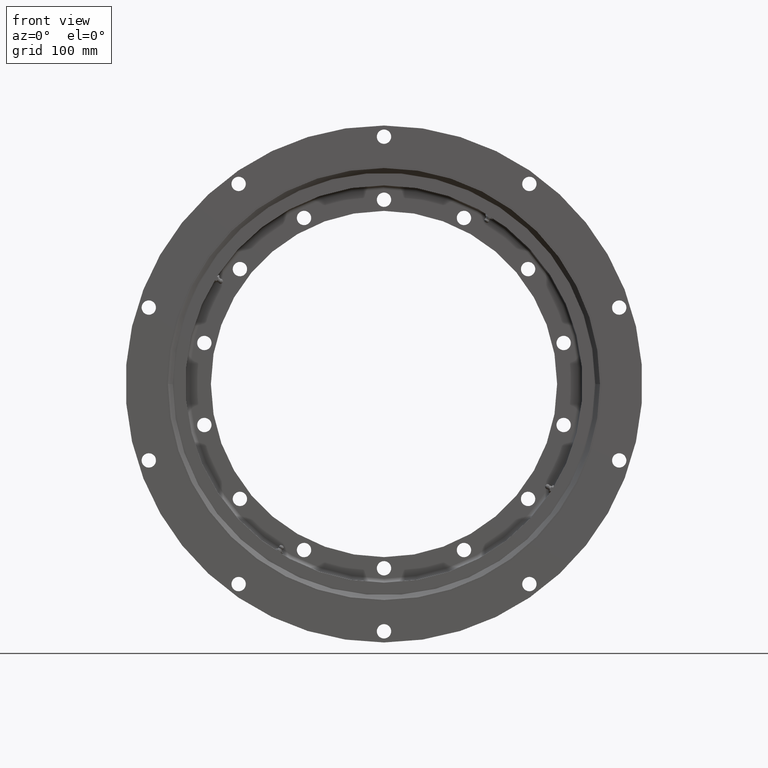
[diagram: clean part render]
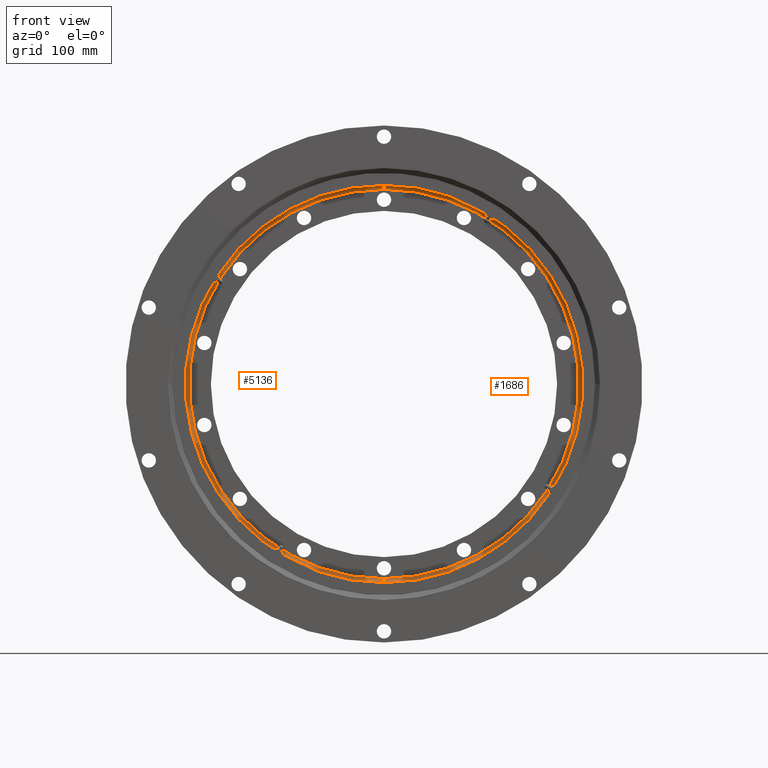
[diagram: same view with one multi-face feature highlighted, each face labeled with its STEP entity id]
A machine part, front view. The highlighted faces form ONE feature: a constant-radius fillet chain: 2 tangent blend faces with common blend radius 5 mm. The faces share edges in the B-rep.
Their STEP definitions:
[1] entity #5136 (Torus):
#188 = CIRCLE ( 'NONE', #5654, 244.0000000000000000 ) ;
#334 = DIRECTION ( 'NONE',  ( 0.0000000000000000000, -1.000000000000000000, -3.092576026240644600E-016 ) ) ;
#781 = CIRCLE ( 'NONE', #1902, 249.0000000000000000 ) ;
#824 = DIRECTION ( 'NONE',  ( -0.0000000000000000000, 1.000000000000000000, 3.092576026240644600E-016 ) ) ;
#949 = DIRECTION ( 'NONE',  ( -1.000000000000000000, 0.0000000000000000000, -0.0000000000000000000 ) ) ;
#1150 = TOROIDAL_SURFACE ( 'NONE', #1201, 244.0000000000000000, 5.000000000000000000 ) ;
#1201 = AXIS2_PLACEMENT_3D ( 'NONE', #8875, #334, #4528 ) ;
#1417 = DIRECTION ( 'NONE',  ( -1.224646799147349500E-016, 0.0000000000000000000, -1.000000000000000000 ) ) ;
#1722 = CARTESIAN_POINT ( 'NONE',  ( 0.0000000000000000000, 11.00000000000011500, -244.0000000000000000 ) ) ;
#1855 = ORIENTED_EDGE ( 'NONE', *, *, #3709, .F. ) ;
#1902 = AXIS2_PLACEMENT_3D ( 'NONE', #7822, #824, #9601 ) ;
#2003 = VERTEX_POINT ( 'NONE', #4953 ) ;
#2167 = CARTESIAN_POINT ( 'NONE',  ( 2.988138189919542000E-014, 10.99999999999996600, 244.0000000000000000 ) ) ;
#2196 = CARTESIAN_POINT ( 'NONE',  ( 3.049370529876909600E-014, 11.00000000000012100, -249.0000000000000000 ) ) ;
#2202 = VERTEX_POINT ( 'NONE', #5318 ) ;
#2977 = EDGE_CURVE ( 'NONE', #2202, #2003, #9355, .T. ) ;
#3216 = EDGE_LOOP ( 'NONE', ( #9348, #9456, #3917, #1855 ) ) ;
#3415 = FACE_OUTER_BOUND ( 'NONE', #3216, .T. ) ;
#3709 = EDGE_CURVE ( 'NONE', #7305, #5676, #5817, .T. ) ;
#3917 = ORIENTED_EDGE ( 'NONE', *, *, #4932, .F. ) ;
#4528 = DIRECTION ( 'NONE',  ( 0.0000000000000000000, 3.092576026240644600E-016, -1.000000000000000000 ) ) ;
#4739 = DIRECTION ( 'NONE',  ( 0.0000000000000000000, 0.0000000000000000000, 1.000000000000000000 ) ) ;
#4749 = AXIS2_PLACEMENT_3D ( 'NONE', #2167, #6693, #1417 ) ;
#4761 = EDGE_CURVE ( 'NONE', #2202, #7305, #188, .T. ) ;
#4932 = EDGE_CURVE ( 'NONE', #5676, #2003, #781, .T. ) ;
#4953 = CARTESIAN_POINT ( 'NONE',  ( 0.0000000000000000000, 10.99999999999996800, 249.0000000000000000 ) ) ;
#5136 = ADVANCED_FACE ( 'NONE', ( #3415 ), #1150, .F. ) ;
#5318 = CARTESIAN_POINT ( 'NONE',  ( 3.018754359898225800E-014, 15.99999999999996600, 244.0000000000000000 ) ) ;
#5654 = AXIS2_PLACEMENT_3D ( 'NONE', #8533, #6070, #7360 ) ;
#5676 = VERTEX_POINT ( 'NONE', #2196 ) ;
#5817 = CIRCLE ( 'NONE', #5905, 5.000000000000004400 ) ;
#5905 = AXIS2_PLACEMENT_3D ( 'NONE', #1722, #949, #4739 ) ;
#6070 = DIRECTION ( 'NONE',  ( 0.0000000000000000000, -1.000000000000000000, -3.092576026240644600E-016 ) ) ;
#6693 = DIRECTION ( 'NONE',  ( 1.000000000000000000, 3.787313331655446500E-032, -1.224646799147353200E-016 ) ) ;
#7305 = VERTEX_POINT ( 'NONE', #7749 ) ;
#7360 = DIRECTION ( 'NONE',  ( 0.0000000000000000000, 3.128189874712274900E-016, -1.000000000000000000 ) ) ;
#7749 = CARTESIAN_POINT ( 'NONE',  ( 0.0000000000000000000, 16.00000000000011700, -244.0000000000000000 ) ) ;
#7822 = CARTESIAN_POINT ( 'NONE',  ( 0.0000000000000000000, 11.00000000000004400, -1.146160866217915600E-015 ) ) ;
#8533 = CARTESIAN_POINT ( 'NONE',  ( 0.0000000000000000000, 16.00000000000004300, 4.001271469024075200E-016 ) ) ;
#8875 = CARTESIAN_POINT ( 'NONE',  ( 0.0000000000000000000, 11.00000000000004100, -1.146160866217915400E-015 ) ) ;
#9348 = ORIENTED_EDGE ( 'NONE', *, *, #4761, .F. ) ;
#9355 = CIRCLE ( 'NONE', #4749, 5.000000000000004400 ) ;
#9456 = ORIENTED_EDGE ( 'NONE', *, *, #2977, .T. ) ;
#9601 = DIRECTION ( 'NONE',  ( 0.0000000000000000000, 3.065374816987129200E-016, -1.000000000000000000 ) ) ;
[2] entity #1686 (Torus):
#813 = CIRCLE ( 'NONE', #5423, 244.0000000000000000 ) ;
#949 = DIRECTION ( 'NONE',  ( -1.000000000000000000, 0.0000000000000000000, -0.0000000000000000000 ) ) ;
#1417 = DIRECTION ( 'NONE',  ( -1.224646799147349500E-016, 0.0000000000000000000, -1.000000000000000000 ) ) ;
#1686 = ADVANCED_FACE ( 'NONE', ( #7019 ), #7494, .F. ) ;
#1722 = CARTESIAN_POINT ( 'NONE',  ( 0.0000000000000000000, 11.00000000000011500, -244.0000000000000000 ) ) ;
#1756 = ORIENTED_EDGE ( 'NONE', *, *, #2977, .F. ) ;
#2003 = VERTEX_POINT ( 'NONE', #4953 ) ;
#2167 = CARTESIAN_POINT ( 'NONE',  ( 2.988138189919542000E-014, 10.99999999999996600, 244.0000000000000000 ) ) ;
#2196 = CARTESIAN_POINT ( 'NONE',  ( 3.049370529876909600E-014, 11.00000000000012100, -249.0000000000000000 ) ) ;
#2202 = VERTEX_POINT ( 'NONE', #5318 ) ;
#2505 = EDGE_CURVE ( 'NONE', #2003, #5676, #6968, .T. ) ;
#2977 = EDGE_CURVE ( 'NONE', #2202, #2003, #9355, .T. ) ;
#3709 = EDGE_CURVE ( 'NONE', #7305, #5676, #5817, .T. ) ;
#3960 = ORIENTED_EDGE ( 'NONE', *, *, #9357, .F. ) ;
#4237 = DIRECTION ( 'NONE',  ( 0.0000000000000000000, 3.128189874712274900E-016, -1.000000000000000000 ) ) ;
#4372 = CARTESIAN_POINT ( 'NONE',  ( 0.0000000000000000000, 11.00000000000004400, -1.146160866217915600E-015 ) ) ;
#4579 = CARTESIAN_POINT ( 'NONE',  ( 0.0000000000000000000, 11.00000000000004100, -1.146160866217915400E-015 ) ) ;
#4630 = AXIS2_PLACEMENT_3D ( 'NONE', #4372, #9646, #5503 ) ;
#4739 = DIRECTION ( 'NONE',  ( 0.0000000000000000000, 0.0000000000000000000, 1.000000000000000000 ) ) ;
#4749 = AXIS2_PLACEMENT_3D ( 'NONE', #2167, #6693, #1417 ) ;
#4868 = CARTESIAN_POINT ( 'NONE',  ( 0.0000000000000000000, 16.00000000000004300, 4.001271469024075200E-016 ) ) ;
#4953 = CARTESIAN_POINT ( 'NONE',  ( 0.0000000000000000000, 10.99999999999996800, 249.0000000000000000 ) ) ;
#5182 = AXIS2_PLACEMENT_3D ( 'NONE', #4579, #9179, #5538 ) ;
#5318 = CARTESIAN_POINT ( 'NONE',  ( 3.018754359898225800E-014, 15.99999999999996600, 244.0000000000000000 ) ) ;
#5330 = EDGE_LOOP ( 'NONE', ( #1756, #3960, #8241, #6147 ) ) ;
#5423 = AXIS2_PLACEMENT_3D ( 'NONE', #4868, #8604, #4237 ) ;
#5503 = DIRECTION ( 'NONE',  ( 0.0000000000000000000, 3.065374816987129200E-016, -1.000000000000000000 ) ) ;
#5538 = DIRECTION ( 'NONE',  ( 0.0000000000000000000, 3.092576026240644600E-016, -1.000000000000000000 ) ) ;
#5676 = VERTEX_POINT ( 'NONE', #2196 ) ;
#5817 = CIRCLE ( 'NONE', #5905, 5.000000000000004400 ) ;
#5905 = AXIS2_PLACEMENT_3D ( 'NONE', #1722, #949, #4739 ) ;
#6147 = ORIENTED_EDGE ( 'NONE', *, *, #2505, .F. ) ;
#6693 = DIRECTION ( 'NONE',  ( 1.000000000000000000, 3.787313331655446500E-032, -1.224646799147353200E-016 ) ) ;
#6968 = CIRCLE ( 'NONE', #4630, 249.0000000000000000 ) ;
#7019 = FACE_OUTER_BOUND ( 'NONE', #5330, .T. ) ;
#7305 = VERTEX_POINT ( 'NONE', #7749 ) ;
#7494 = TOROIDAL_SURFACE ( 'NONE', #5182, 244.0000000000000000, 5.000000000000000000 ) ;
#7749 = CARTESIAN_POINT ( 'NONE',  ( 0.0000000000000000000, 16.00000000000011700, -244.0000000000000000 ) ) ;
#8241 = ORIENTED_EDGE ( 'NONE', *, *, #3709, .T. ) ;
#8604 = DIRECTION ( 'NONE',  ( 0.0000000000000000000, -1.000000000000000000, -3.092576026240644600E-016 ) ) ;
#9179 = DIRECTION ( 'NONE',  ( 0.0000000000000000000, -1.000000000000000000, -3.092576026240644600E-016 ) ) ;
#9355 = CIRCLE ( 'NONE', #4749, 5.000000000000004400 ) ;
#9357 = EDGE_CURVE ( 'NONE', #7305, #2202, #813, .T. ) ;
#9646 = DIRECTION ( 'NONE',  ( -0.0000000000000000000, 1.000000000000000000, 3.092576026240644600E-016 ) ) ;